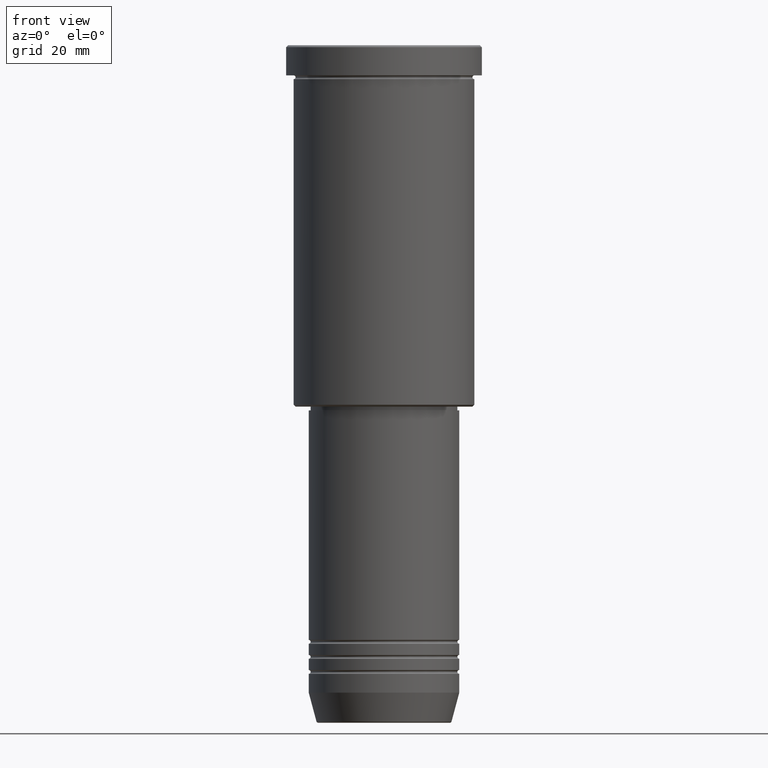
[diagram: clean part render]
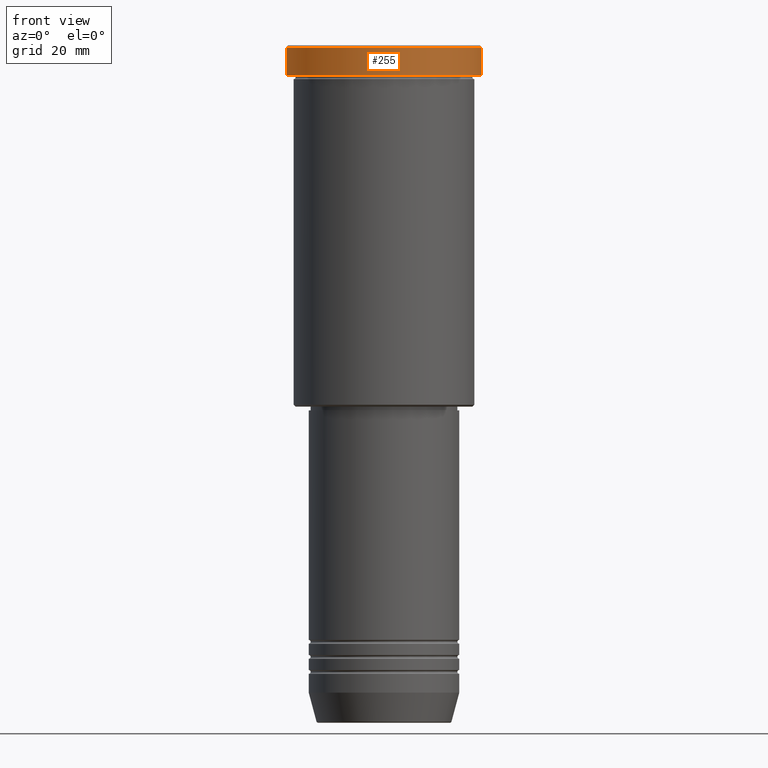
[diagram: same view with one face highlighted and labeled with its STEP entity id]
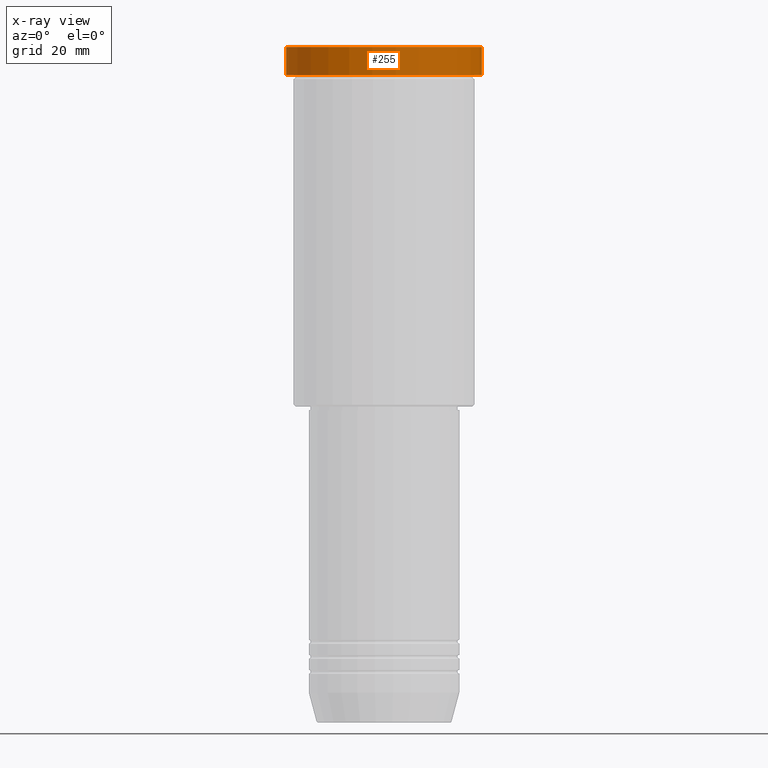
[diagram: x-ray of the same camera — body ghosted, the highlighted face saturated]
A machine part, front view. The second image highlights one B-rep face of the part: STEP entity #255.
The next image is the same camera in x-ray: the body ghosted, the highlighted face saturated — about 0% of this face is hidden behind the body in this view.
In plain terms, the highlighted cylindrical surface (partial cylindrical patch) has radius 26 mm, axis along (-0, -0, 1).
Its self-contained STEP definition (entity closure, byte-faithful):
#14 = DIRECTION ( 'NONE',  ( -0.000000000000000000, -0.000000000000000000, 1.000000000000000000 ) ) ;
#18 = LINE ( 'NONE', #755, #73 ) ;
#63 = ORIENTED_EDGE ( 'NONE', *, *, #889, .F. ) ;
#73 = VECTOR ( 'NONE', #377, 1000.000000000000000 ) ;
#120 = ORIENTED_EDGE ( 'NONE', *, *, #874, .T. ) ;
#121 = DIRECTION ( 'NONE',  ( 1.000000000000000000, 0.000000000000000000, 0.000000000000000000 ) ) ;
#158 = VERTEX_POINT ( 'NONE', #449 ) ;
#161 = VECTOR ( 'NONE', #390, 1000.000000000000000 ) ;
#184 = FACE_OUTER_BOUND ( 'NONE', #600, .T. ) ;
#255 = ADVANCED_FACE ( 'NONE', ( #184 ), #1127, .T. ) ;
#274 = EDGE_CURVE ( 'NONE', #879, #158, #18, .T. ) ;
#310 = LINE ( 'NONE', #647, #161 ) ;
#370 = CARTESIAN_POINT ( 'NONE',  ( 0.000000000000000000, 0.000000000000000000, -0.4999999999999970024 ) ) ;
#377 = DIRECTION ( 'NONE',  ( -0.000000000000000000, -0.000000000000000000, 1.000000000000000000 ) ) ;
#385 = AXIS2_PLACEMENT_3D ( 'NONE', #561, #14, #541 ) ;
#390 = DIRECTION ( 'NONE',  ( -0.000000000000000000, -0.000000000000000000, 1.000000000000000000 ) ) ;
#449 = CARTESIAN_POINT ( 'NONE',  ( 26.00000000000000000, 0.000000000000000000, -0.4999999999999970024 ) ) ;
#541 = DIRECTION ( 'NONE',  ( 1.000000000000000000, 0.000000000000000000, 0.000000000000000000 ) ) ;
#549 = CARTESIAN_POINT ( 'NONE',  ( -26.00000000000000000, 3.184081677783118191E-15, -7.999999999999992895 ) ) ;
#554 = DIRECTION ( 'NONE',  ( 1.000000000000000000, 0.000000000000000000, 0.000000000000000000 ) ) ;
#561 = CARTESIAN_POINT ( 'NONE',  ( 0.000000000000000000, 0.000000000000000000, -7.999999999999992895 ) ) ;
#590 = AXIS2_PLACEMENT_3D ( 'NONE', #370, #730, #554 ) ;
#591 = VERTEX_POINT ( 'NONE', #863 ) ;
#600 = EDGE_LOOP ( 'NONE', ( #63, #1118, #877, #120 ) ) ;
#647 = CARTESIAN_POINT ( 'NONE',  ( -26.00000000000000000, 3.184081677783118191E-15, 0.000000000000000000 ) ) ;
#730 = DIRECTION ( 'NONE',  ( 0.000000000000000000, 0.000000000000000000, -1.000000000000000000 ) ) ;
#748 = CARTESIAN_POINT ( 'NONE',  ( 0.000000000000000000, 0.000000000000000000, 0.000000000000000000 ) ) ;
#755 = CARTESIAN_POINT ( 'NONE',  ( 26.00000000000000000, 0.000000000000000000, 0.000000000000000000 ) ) ;
#831 = DIRECTION ( 'NONE',  ( -0.000000000000000000, -0.000000000000000000, 1.000000000000000000 ) ) ;
#844 = CIRCLE ( 'NONE', #385, 26.00000000000000000 ) ;
#863 = CARTESIAN_POINT ( 'NONE',  ( -26.00000000000000000, 3.184081677783118191E-15, -0.4999999999999970024 ) ) ;
#874 = EDGE_CURVE ( 'NONE', #158, #591, #961, .T. ) ;
#877 = ORIENTED_EDGE ( 'NONE', *, *, #274, .T. ) ;
#879 = VERTEX_POINT ( 'NONE', #1010 ) ;
#889 = EDGE_CURVE ( 'NONE', #1072, #591, #310, .T. ) ;
#961 = CIRCLE ( 'NONE', #590, 26.00000000000000000 ) ;
#1010 = CARTESIAN_POINT ( 'NONE',  ( 26.00000000000000000, 0.000000000000000000, -7.999999999999992895 ) ) ;
#1072 = VERTEX_POINT ( 'NONE', #549 ) ;
#1095 = AXIS2_PLACEMENT_3D ( 'NONE', #748, #831, #121 ) ;
#1101 = EDGE_CURVE ( 'NONE', #1072, #879, #844, .T. ) ;
#1118 = ORIENTED_EDGE ( 'NONE', *, *, #1101, .T. ) ;
#1127 = CYLINDRICAL_SURFACE ( 'NONE', #1095, 26.00000000000000000 ) ;